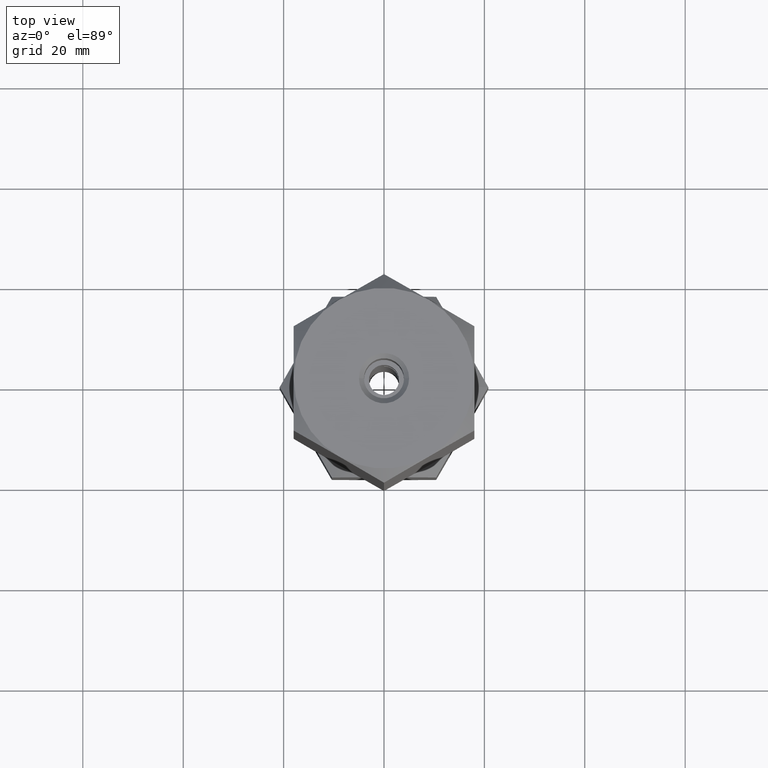
[diagram: clean part render]
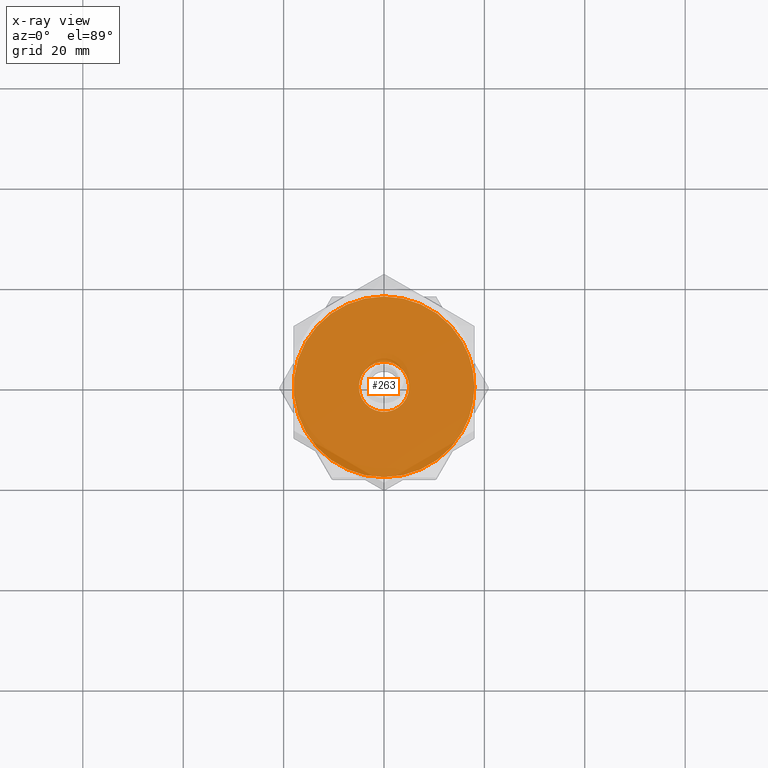
[diagram: x-ray — body ghosted, one internal face saturated and labeled with its STEP entity id]
A machine part, top view, then the same camera in x-ray: the body is ghosted and one INTERNAL B-rep face — a face not visible from any outside direction — is saturated and labeled: STEP entity #263.
In plain terms, the highlighted planar face has unit normal (0, 0, 1).
Its self-contained STEP definition (entity closure, byte-faithful):
#40 = CARTESIAN_POINT ( 'NONE',  ( 0.000000000000000000, 0.000000000000000000, 33.33333333333330017 ) ) ;
#43 = DIRECTION ( 'NONE',  ( 0.000000000000000000, 0.000000000000000000, 1.000000000000000000 ) ) ;
#44 = EDGE_CURVE ( 'NONE', #1030, #1410, #460, .T. ) ;
#60 = AXIS2_PLACEMENT_3D ( 'NONE', #1713, #2038, #923 ) ;
#67 = CARTESIAN_POINT ( 'NONE',  ( 15.58845726811989429, -9.000000000000001776, 33.33333333333330017 ) ) ;
#81 = ORIENTED_EDGE ( 'NONE', *, *, #1316, .T. ) ;
#105 = VERTEX_POINT ( 'NONE', #67 ) ;
#178 = CARTESIAN_POINT ( 'NONE',  ( 0.000000000000000000, 0.000000000000000000, 33.33333333333330017 ) ) ;
#187 = EDGE_CURVE ( 'NONE', #1621, #1850, #1923, .T. ) ;
#228 = AXIS2_PLACEMENT_3D ( 'NONE', #398, #1633, #1481 ) ;
#232 = CIRCLE ( 'NONE', #1494, 18.00000000000000000 ) ;
#263 = ADVANCED_FACE ( 'NONE', ( #1399, #601 ), #748, .T. ) ;
#317 = VERTEX_POINT ( 'NONE', #1129 ) ;
#345 = CARTESIAN_POINT ( 'NONE',  ( 0.000000000000000000, 0.000000000000000000, 33.33333333333330017 ) ) ;
#363 = EDGE_CURVE ( 'NONE', #611, #1198, #1211, .T. ) ;
#398 = CARTESIAN_POINT ( 'NONE',  ( 0.000000000000000000, 0.000000000000000000, 33.33333333333330017 ) ) ;
#399 = ORIENTED_EDGE ( 'NONE', *, *, #44, .T. ) ;
#422 = CARTESIAN_POINT ( 'NONE',  ( 0.000000000000000000, 0.000000000000000000, 33.33333333333330017 ) ) ;
#430 = CARTESIAN_POINT ( 'NONE',  ( 0.000000000000000000, 0.000000000000000000, 33.33333333333330017 ) ) ;
#455 = EDGE_CURVE ( 'NONE', #1410, #317, #986, .T. ) ;
#459 = DIRECTION ( 'NONE',  ( 0.000000000000000000, 0.000000000000000000, -1.000000000000000000 ) ) ;
#460 = CIRCLE ( 'NONE', #1623, 18.00000000000000000 ) ;
#465 = AXIS2_PLACEMENT_3D ( 'NONE', #178, #1767, #1453 ) ;
#477 = ORIENTED_EDGE ( 'NONE', *, *, #1648, .T. ) ;
#519 = CARTESIAN_POINT ( 'NONE',  ( 5.000000000000000000, 6.123233995736766282E-16, 33.33333333333330017 ) ) ;
#531 = AXIS2_PLACEMENT_3D ( 'NONE', #422, #459, #914 ) ;
#601 = FACE_OUTER_BOUND ( 'NONE', #1002, .T. ) ;
#611 = VERTEX_POINT ( 'NONE', #684 ) ;
#613 = DIRECTION ( 'NONE',  ( 0.000000000000000000, 0.000000000000000000, -1.000000000000000000 ) ) ;
#684 = CARTESIAN_POINT ( 'NONE',  ( -15.58845726811989607, -9.000000000000003553, 33.33333333333330017 ) ) ;
#748 = PLANE ( 'NONE',  #60 ) ;
#767 = ORIENTED_EDGE ( 'NONE', *, *, #455, .T. ) ;
#784 = CIRCLE ( 'NONE', #228, 18.00000000000000000 ) ;
#804 = CARTESIAN_POINT ( 'NONE',  ( -5.000000000000000000, 0.000000000000000000, 33.33333333333330017 ) ) ;
#850 = CARTESIAN_POINT ( 'NONE',  ( 0.000000000000000000, 0.000000000000000000, 33.33333333333330017 ) ) ;
#877 = EDGE_LOOP ( 'NONE', ( #1676, #81 ) ) ;
#906 = ORIENTED_EDGE ( 'NONE', *, *, #2007, .T. ) ;
#914 = DIRECTION ( 'NONE',  ( -1.000000000000000000, 0.000000000000000000, 0.000000000000000000 ) ) ;
#920 = CIRCLE ( 'NONE', #1931, 18.00000000000000000 ) ;
#923 = DIRECTION ( 'NONE',  ( 1.000000000000000000, 0.000000000000000000, -0.000000000000000000 ) ) ;
#942 = EDGE_CURVE ( 'NONE', #1530, #1030, #784, .T. ) ;
#979 = CARTESIAN_POINT ( 'NONE',  ( 0.000000000000000000, 0.000000000000000000, 33.33333333333330017 ) ) ;
#986 = CIRCLE ( 'NONE', #1350, 18.00000000000000000 ) ;
#1000 = DIRECTION ( 'NONE',  ( 0.000000000000000000, 0.000000000000000000, 1.000000000000000000 ) ) ;
#1002 = EDGE_LOOP ( 'NONE', ( #906, #1088, #399, #767, #477, #1881, #1240 ) ) ;
#1030 = VERTEX_POINT ( 'NONE', #1235 ) ;
#1088 = ORIENTED_EDGE ( 'NONE', *, *, #942, .T. ) ;
#1122 = AXIS2_PLACEMENT_3D ( 'NONE', #1464, #43, #1261 ) ;
#1129 = CARTESIAN_POINT ( 'NONE',  ( -15.58845726811989607, 8.999999999999996447, 33.33333333333330017 ) ) ;
#1154 = CIRCLE ( 'NONE', #1961, 5.000000000000000000 ) ;
#1169 = CARTESIAN_POINT ( 'NONE',  ( 0.000000000000000000, 18.00000000000000000, 33.33333333333330017 ) ) ;
#1182 = DIRECTION ( 'NONE',  ( 0.000000000000000000, 0.000000000000000000, 1.000000000000000000 ) ) ;
#1198 = VERTEX_POINT ( 'NONE', #1396 ) ;
#1211 = CIRCLE ( 'NONE', #465, 18.00000000000000000 ) ;
#1216 = CIRCLE ( 'NONE', #1122, 18.00000000000000000 ) ;
#1235 = CARTESIAN_POINT ( 'NONE',  ( 15.58845726811989252, 9.000000000000003553, 33.33333333333330017 ) ) ;
#1240 = ORIENTED_EDGE ( 'NONE', *, *, #1801, .T. ) ;
#1261 = DIRECTION ( 'NONE',  ( 1.000000000000000000, 0.000000000000000000, 0.000000000000000000 ) ) ;
#1316 = EDGE_CURVE ( 'NONE', #1850, #1621, #1154, .T. ) ;
#1335 = DIRECTION ( 'NONE',  ( 1.000000000000000000, 0.000000000000000000, 0.000000000000000000 ) ) ;
#1350 = AXIS2_PLACEMENT_3D ( 'NONE', #850, #1182, #1335 ) ;
#1395 = DIRECTION ( 'NONE',  ( 0.000000000000000000, 0.000000000000000000, 1.000000000000000000 ) ) ;
#1396 = CARTESIAN_POINT ( 'NONE',  ( 3.004629197474318851E-15, -18.00000000000000000, 33.33333333333330017 ) ) ;
#1399 = FACE_BOUND ( 'NONE', #877, .T. ) ;
#1410 = VERTEX_POINT ( 'NONE', #1169 ) ;
#1453 = DIRECTION ( 'NONE',  ( 1.000000000000000000, 0.000000000000000000, 0.000000000000000000 ) ) ;
#1464 = CARTESIAN_POINT ( 'NONE',  ( 0.000000000000000000, 0.000000000000000000, 33.33333333333330017 ) ) ;
#1481 = DIRECTION ( 'NONE',  ( 1.000000000000000000, 0.000000000000000000, 0.000000000000000000 ) ) ;
#1494 = AXIS2_PLACEMENT_3D ( 'NONE', #979, #1000, #1624 ) ;
#1530 = VERTEX_POINT ( 'NONE', #1700 ) ;
#1564 = DIRECTION ( 'NONE',  ( -1.000000000000000000, 0.000000000000000000, 0.000000000000000000 ) ) ;
#1621 = VERTEX_POINT ( 'NONE', #804 ) ;
#1623 = AXIS2_PLACEMENT_3D ( 'NONE', #40, #1627, #1768 ) ;
#1624 = DIRECTION ( 'NONE',  ( 1.000000000000000000, 0.000000000000000000, 0.000000000000000000 ) ) ;
#1627 = DIRECTION ( 'NONE',  ( 0.000000000000000000, 0.000000000000000000, 1.000000000000000000 ) ) ;
#1633 = DIRECTION ( 'NONE',  ( 0.000000000000000000, 0.000000000000000000, 1.000000000000000000 ) ) ;
#1648 = EDGE_CURVE ( 'NONE', #317, #611, #1216, .T. ) ;
#1676 = ORIENTED_EDGE ( 'NONE', *, *, #187, .T. ) ;
#1700 = CARTESIAN_POINT ( 'NONE',  ( 18.00000000000000000, 0.000000000000000000, 33.33333333333330017 ) ) ;
#1713 = CARTESIAN_POINT ( 'NONE',  ( 0.000000000000000000, 0.000000000000000000, 33.33333333333330017 ) ) ;
#1767 = DIRECTION ( 'NONE',  ( 0.000000000000000000, 0.000000000000000000, 1.000000000000000000 ) ) ;
#1768 = DIRECTION ( 'NONE',  ( 1.000000000000000000, 0.000000000000000000, 0.000000000000000000 ) ) ;
#1801 = EDGE_CURVE ( 'NONE', #1198, #105, #232, .T. ) ;
#1850 = VERTEX_POINT ( 'NONE', #519 ) ;
#1853 = DIRECTION ( 'NONE',  ( 1.000000000000000000, 0.000000000000000000, 0.000000000000000000 ) ) ;
#1881 = ORIENTED_EDGE ( 'NONE', *, *, #363, .T. ) ;
#1923 = CIRCLE ( 'NONE', #531, 5.000000000000000000 ) ;
#1931 = AXIS2_PLACEMENT_3D ( 'NONE', #430, #1395, #1853 ) ;
#1961 = AXIS2_PLACEMENT_3D ( 'NONE', #345, #613, #1564 ) ;
#2007 = EDGE_CURVE ( 'NONE', #105, #1530, #920, .T. ) ;
#2038 = DIRECTION ( 'NONE',  ( 0.000000000000000000, 0.000000000000000000, 1.000000000000000000 ) ) ;